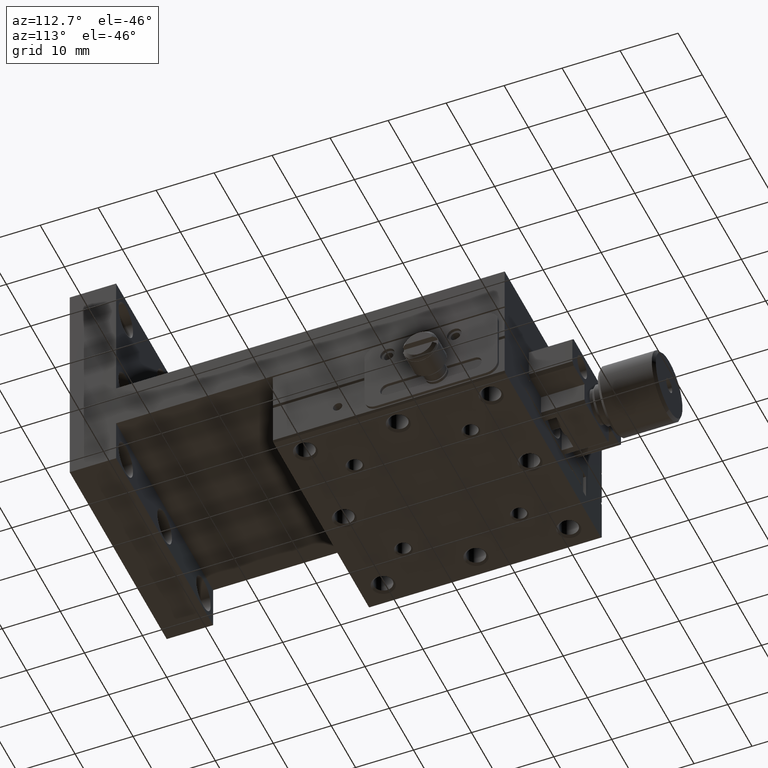
[diagram: clean part render]
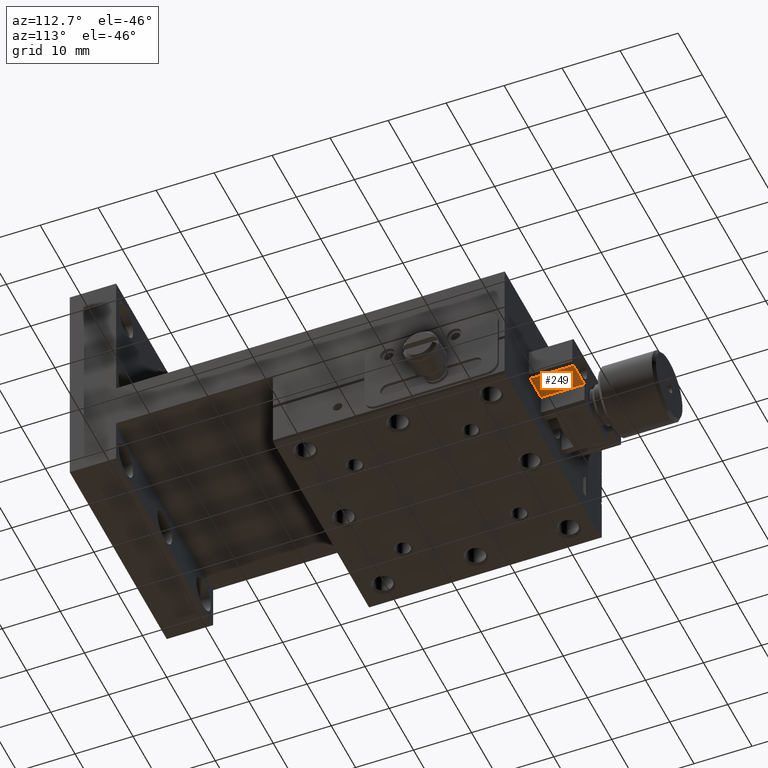
[diagram: same view with one face highlighted and labeled with its STEP entity id]
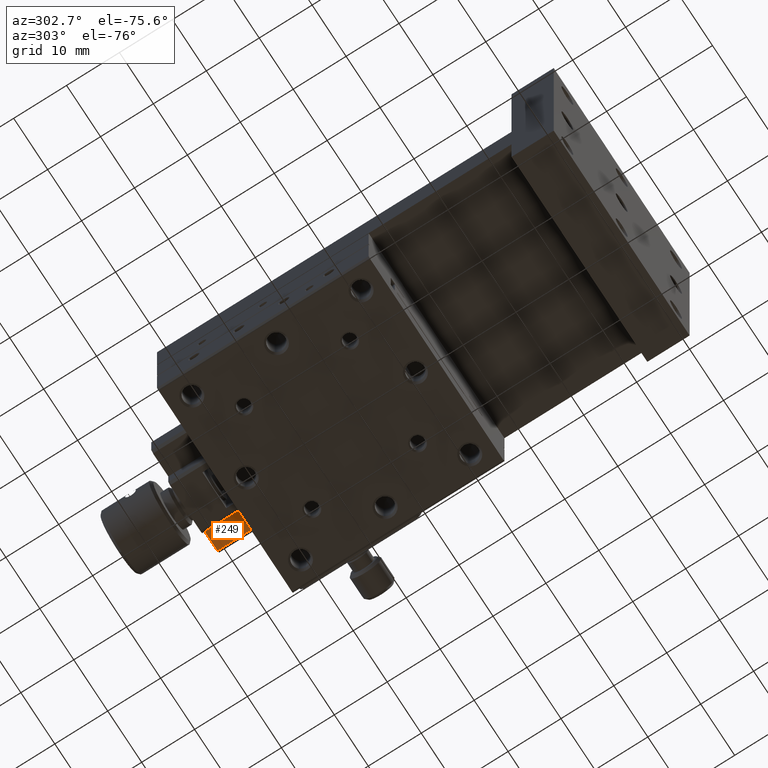
[diagram: same view with one face highlighted and labeled with its STEP entity id]
A machine part, auxiliary view. The second image highlights one B-rep face of the part: STEP entity #249.
A second angle (auxiliary view) of the same face is appended — the face is thin or edge-on in the first view.
In plain terms, the highlighted planar face has unit normal (0, 0, 1).
Its self-contained STEP definition (entity closure, byte-faithful):
#53 = AXIS2_PLACEMENT_3D ( 'NONE', #5671, #1692, #6243 ) ;
#177 = VERTEX_POINT ( 'NONE', #5097 ) ;
#249 = ADVANCED_FACE ( 'NONE', ( #5713 ), #2120, .F. ) ;
#274 = VECTOR ( 'NONE', #3946, 1000.000000000000000 ) ;
#1118 = CARTESIAN_POINT ( 'NONE',  ( 5.000000000000000000, 75.00000000000000000, -6.500000000000000888 ) ) ;
#1147 = DIRECTION ( 'NONE',  ( -1.000000000000000000, -0.000000000000000000, 0.000000000000000000 ) ) ;
#1622 = DIRECTION ( 'NONE',  ( -0.000000000000000000, 1.000000000000000000, 0.000000000000000000 ) ) ;
#1692 = DIRECTION ( 'NONE',  ( 0.000000000000000000, 0.000000000000000000, 1.000000000000000000 ) ) ;
#2120 = PLANE ( 'NONE',  #53 ) ;
#2237 = CARTESIAN_POINT ( 'NONE',  ( 5.000000000000000000, 82.50000000000000000, -6.500000000000000888 ) ) ;
#2528 = VERTEX_POINT ( 'NONE', #4306 ) ;
#2851 = VECTOR ( 'NONE', #1147, 1000.000000000000000 ) ;
#3027 = EDGE_CURVE ( 'NONE', #2528, #7460, #4555, .T. ) ;
#3074 = EDGE_CURVE ( 'NONE', #7460, #5485, #7005, .T. ) ;
#3300 = VECTOR ( 'NONE', #6338, 1000.000000000000000 ) ;
#3520 = ORIENTED_EDGE ( 'NONE', *, *, #6381, .F. ) ;
#3633 = ORIENTED_EDGE ( 'NONE', *, *, #3027, .F. ) ;
#3946 = DIRECTION ( 'NONE',  ( 0.000000000000000000, -1.000000000000000000, -0.000000000000000000 ) ) ;
#4116 = ORIENTED_EDGE ( 'NONE', *, *, #3074, .F. ) ;
#4306 = CARTESIAN_POINT ( 'NONE',  ( 9.500000000000000000, 82.50000000000000000, -6.500000000000000888 ) ) ;
#4316 = EDGE_CURVE ( 'NONE', #177, #2528, #5104, .T. ) ;
#4555 = LINE ( 'NONE', #7507, #2851 ) ;
#4720 = VECTOR ( 'NONE', #1622, 1000.000000000000000 ) ;
#5097 = CARTESIAN_POINT ( 'NONE',  ( 9.500000000000001776, 75.00000000000000000, -6.500000000000000888 ) ) ;
#5104 = LINE ( 'NONE', #6864, #4720 ) ;
#5231 = LINE ( 'NONE', #7493, #3300 ) ;
#5485 = VERTEX_POINT ( 'NONE', #1118 ) ;
#5667 = ORIENTED_EDGE ( 'NONE', *, *, #4316, .F. ) ;
#5671 = CARTESIAN_POINT ( 'NONE',  ( 9.500000000000000000, 82.50000000000000000, -6.500000000000000888 ) ) ;
#5682 = CARTESIAN_POINT ( 'NONE',  ( 5.000000000000000000, 82.50000000000000000, -6.500000000000000888 ) ) ;
#5713 = FACE_OUTER_BOUND ( 'NONE', #6063, .T. ) ;
#6063 = EDGE_LOOP ( 'NONE', ( #4116, #3633, #5667, #3520 ) ) ;
#6243 = DIRECTION ( 'NONE',  ( 1.000000000000000000, 0.000000000000000000, -0.000000000000000000 ) ) ;
#6338 = DIRECTION ( 'NONE',  ( 1.000000000000000000, 0.000000000000000000, -0.000000000000000000 ) ) ;
#6381 = EDGE_CURVE ( 'NONE', #5485, #177, #5231, .T. ) ;
#6864 = CARTESIAN_POINT ( 'NONE',  ( 9.500000000000000000, 82.50000000000000000, -6.500000000000000888 ) ) ;
#7005 = LINE ( 'NONE', #2237, #274 ) ;
#7460 = VERTEX_POINT ( 'NONE', #5682 ) ;
#7493 = CARTESIAN_POINT ( 'NONE',  ( 0.000000000000000000, 75.00000000000000000, -6.500000000000000888 ) ) ;
#7507 = CARTESIAN_POINT ( 'NONE',  ( 9.500000000000000000, 82.50000000000000000, -6.500000000000000888 ) ) ;